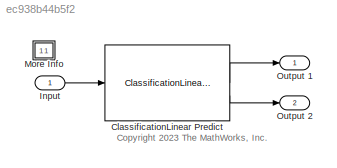
MODEL slx_ec938b44b5f2
KIND model
CONFIG AbsTol = auto
CONFIG EnableMultiTasking = off
CONFIG FixedStep = 1
CONFIG MaxStep = auto
CONFIG MinStep = auto
CONFIG PreLoadFcn = if ~exist("linearMdl","var")\n\nload nlpdata\n\nn = size(X,1);\nrng("default") % For reproducibility\nshflidx = randperm(n);\nX = X(shflidx,:);\nY = Y(shflidx);\n\nYstats = Y == "stats";\nc = cvpartition(Ystats,Holdout=0.1);\nidxPrsnt = training(c);\nidxFtr = test(c);\n\nprsntX = X(idxPrsnt,:);\nprsntY = Ystats(idxPrsnt);\nftrX = X(idxFtr,:);\nftrY = Ystats(idxFtr);\n\nlinearMdl = fitclinear(prsntX,prsntY);\n\n[nftrX,p...<+114ch>
CONFIG RelTol = 1e-3
CONFIG SampleTimeConstraint = Unconstrained
CONFIG SolverName = FixedStepDiscrete
CONFIG StartTime = 0.0
CONFIG StopTime = nlp.time(end)
BLOCK [Reference] ClassificationLinear Predict  REF=statsLibrary/Classification/ClassificationLinear Predict
  LibrarySourceBlock = statsLibrary/Classification/ClassificationSVM Predict1
  SourceBlock = statsLibrary/Classification/ClassificationLinear Predict
  SourceType = ClassificationLinear Predict
BLOCK [Inport] Input
BLOCK [SubSystem] More Info
  OpenFcn = showExample('stats/PredictClassLabelsUsingClassificationLinearPredictBlockExample')
BLOCK [Outport] Output 1
BLOCK [Outport] Output 2
  Port = 2
ANNOTATION (root): <copyright redacted>
LINE ClassificationLinear Predict:1 -> Output 1:1
LINE ClassificationLinear Predict:2 -> Output 2:1
LINE Input:1 -> ClassificationLinear Predict:1
